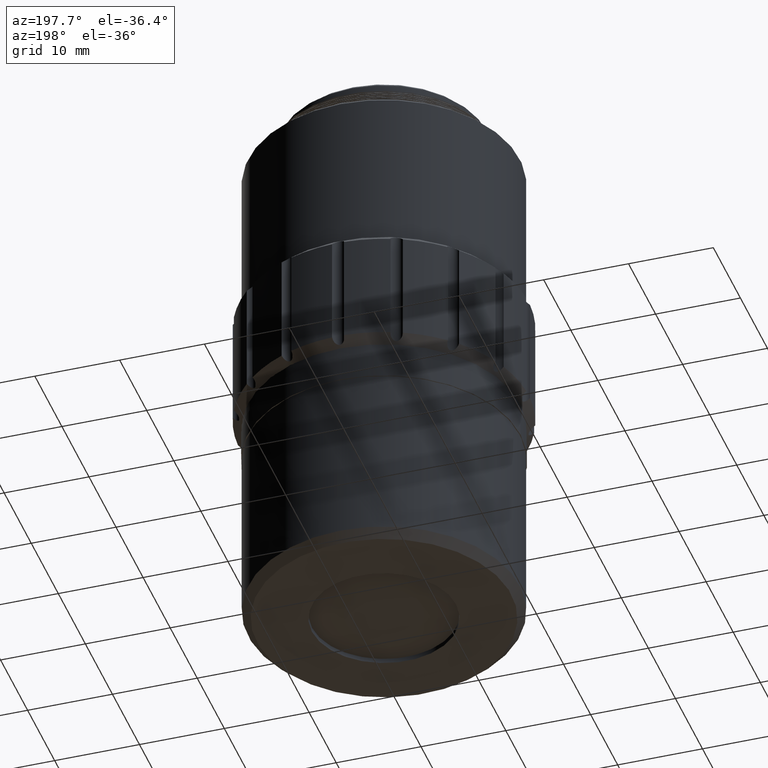
[diagram: clean part render]
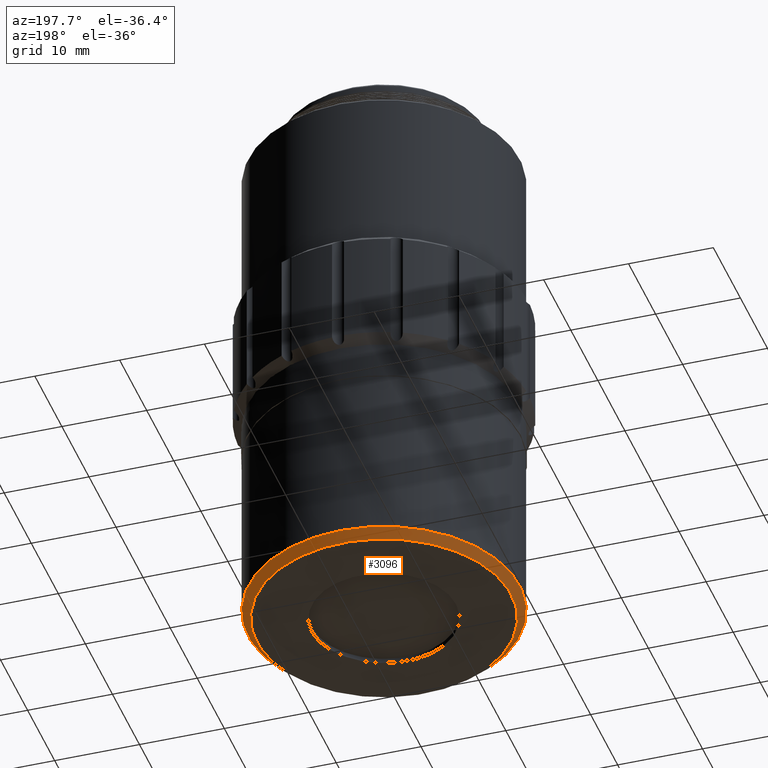
[diagram: same view with one face highlighted and labeled with its STEP entity id]
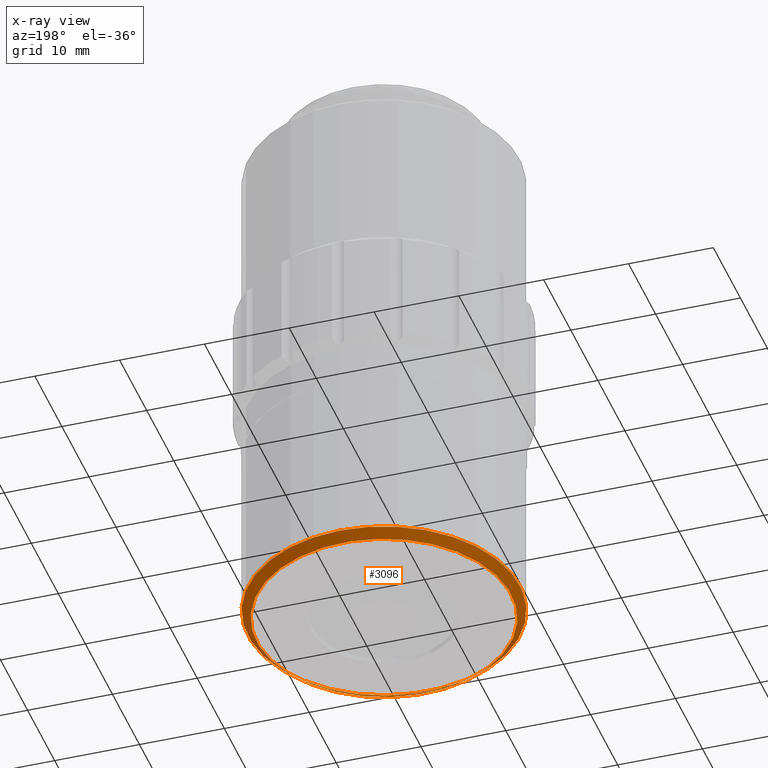
[diagram: x-ray of the same camera — body ghosted, the highlighted face saturated]
A machine part, auxiliary view. The second image highlights one B-rep face of the part: STEP entity #3096.
The next image is the same camera in x-ray: the body ghosted, the highlighted face saturated — about 0% of this face is hidden behind the body in this view.
In plain terms, the highlighted conical surface has half-angle 45 deg.
Its self-contained STEP definition (entity closure, byte-faithful):
#546 = CIRCLE ( 'NONE', #1390, 14.99999999999999822 ) ;
#1211 = DIRECTION ( 'NONE',  ( -0.000000000000000000, -0.000000000000000000, -1.000000000000000000 ) ) ;
#1390 = AXIS2_PLACEMENT_3D ( 'NONE', #14685, #1211, #9504 ) ;
#1931 = EDGE_CURVE ( 'NONE', #17074, #17074, #546, .T. ) ;
#2465 = VERTEX_POINT ( 'NONE', #13225 ) ;
#2815 = DIRECTION ( 'NONE',  ( 0.000000000000000000, 0.000000000000000000, 1.000000000000000000 ) ) ;
#3096 = ADVANCED_FACE ( 'NONE', ( #12744, #16431 ), #15459, .T. ) ;
#5891 = DIRECTION ( 'NONE',  ( 0.9984986589527604650, -0.05477616333350726618, 0.000000000000000000 ) ) ;
#6450 = AXIS2_PLACEMENT_3D ( 'NONE', #8027, #2815, #9348 ) ;
#8027 = CARTESIAN_POINT ( 'NONE',  ( -122.6630341068842824, 22.01530283243863906, -32.90774392209306143 ) ) ;
#8127 = CIRCLE ( 'NONE', #6450, 16.00000000000000711 ) ;
#9174 = CARTESIAN_POINT ( 'NONE',  ( -107.6855542225928843, 21.19366038243602901, -33.90774392209306143 ) ) ;
#9348 = DIRECTION ( 'NONE',  ( 0.9984986589527604650, -0.05477616333350737027, 0.000000000000000000 ) ) ;
#9504 = DIRECTION ( 'NONE',  ( 0.9984986589527604650, -0.05477616333350726618, 0.000000000000000000 ) ) ;
#12029 = ORIENTED_EDGE ( 'NONE', *, *, #1931, .F. ) ;
#12744 = FACE_BOUND ( 'NONE', #12903, .T. ) ;
#12903 = EDGE_LOOP ( 'NONE', ( #12029 ) ) ;
#13225 = CARTESIAN_POINT ( 'NONE',  ( -106.6870555636401150, 21.13888421910252191, -32.90774392209306143 ) ) ;
#13800 = AXIS2_PLACEMENT_3D ( 'NONE', #16683, #13886, #5891 ) ;
#13886 = DIRECTION ( 'NONE',  ( 0.000000000000000000, 0.000000000000000000, 1.000000000000000000 ) ) ;
#14410 = EDGE_LOOP ( 'NONE', ( #16119 ) ) ;
#14685 = CARTESIAN_POINT ( 'NONE',  ( -122.6630341068842824, 22.01530283243863906, -33.90774392209306143 ) ) ;
#15459 = CONICAL_SURFACE ( 'NONE', #13800, 14.99999999999999822, 0.7853981633974482790 ) ;
#16119 = ORIENTED_EDGE ( 'NONE', *, *, #16357, .F. ) ;
#16357 = EDGE_CURVE ( 'NONE', #2465, #2465, #8127, .T. ) ;
#16431 = FACE_OUTER_BOUND ( 'NONE', #14410, .T. ) ;
#16683 = CARTESIAN_POINT ( 'NONE',  ( -122.6630341068842824, 22.01530283243863906, -33.90774392209306143 ) ) ;
#17074 = VERTEX_POINT ( 'NONE', #9174 ) ;